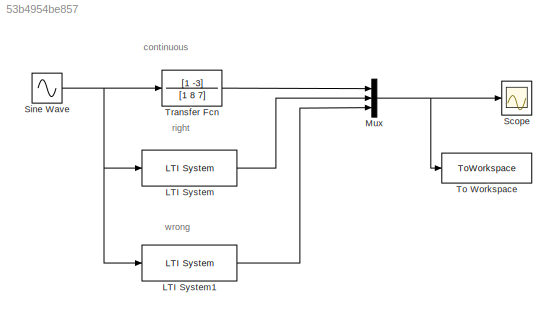
MODEL slx_53b4954be857
KIND model
CONFIG AbsTol = auto
CONFIG EnableMultiTasking = off
CONFIG FixedStep = auto
CONFIG MaxStep = auto
CONFIG MinStep = auto
CONFIG RelTol = 1e-3
CONFIG SampleTimeConstraint = Unconstrained
CONFIG SolverName = VariableStepAuto
CONFIG StartTime = 0.0
CONFIG StopTime = 10.0
BLOCK [Reference] LTI System  REF=cstblocks/LTI System
  SourceBlock = cstblocks/LTI System
  SourceType = LTI Block
BLOCK [Reference] LTI System1  REF=cstblocks/LTI System
  SourceBlock = cstblocks/LTI System
  SourceType = LTI Block
BLOCK [Mux] Mux
  DisplayOption = bar
  Inputs = 3
BLOCK [Scope] Scope
  Floating = off
  NumInputPorts = 1
  ScopeSpecificationString = Simulink.scopes.TimeScopeBlockCfg('CurrentConfiguration', extmgr.ConfigurationSet(extmgr.Configuration('Core','General UI',true),extmgr.Configuration('Core','Source UI',true),extmgr.Configuration('Sources','WiredSimulink',true),extmgr.Configuration('Visuals','Time Domain',true,'SerializedDisplays',{struct('MinYLimReal','-0.41789','MaxYLimReal','0.39662','YLabelReal','','MinYLimMag','0.00000','MaxY...<+1476ch>
BLOCK [Sin] Sine Wave
  SampleTime = 0
BLOCK [ToWorkspace] To Workspace
  FixptAsFi = on
  MaxDataPoints = inf
  SampleTime = -1
  SaveFormat = Timeseries
  VariableName = simout
BLOCK [TransferFcn] Transfer Fcn
  Denominator = [1 8 7]
  Numerator = [1 -3]
ANNOTATION (root): continuous
ANNOTATION (root): right
ANNOTATION (root): wrong
LINE LTI System1:1 -> Mux:3
LINE LTI System:1 -> Mux:2
NET Mux:1 -> Scope:1, To Workspace:1
NET Sine Wave:1 -> LTI System1:1, LTI System:1, Transfer Fcn:1
LINE Transfer Fcn:1 -> Mux:1
note: NET lines group one-source signal fan-out (src -> all destinations, sorted); 1:1 wires keep LINE
